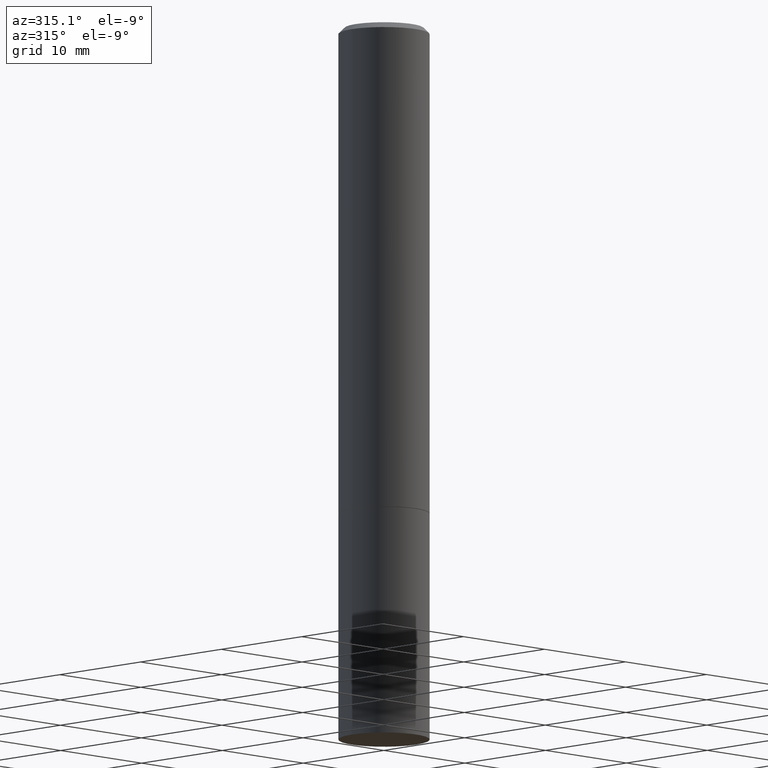
[diagram: clean part render]
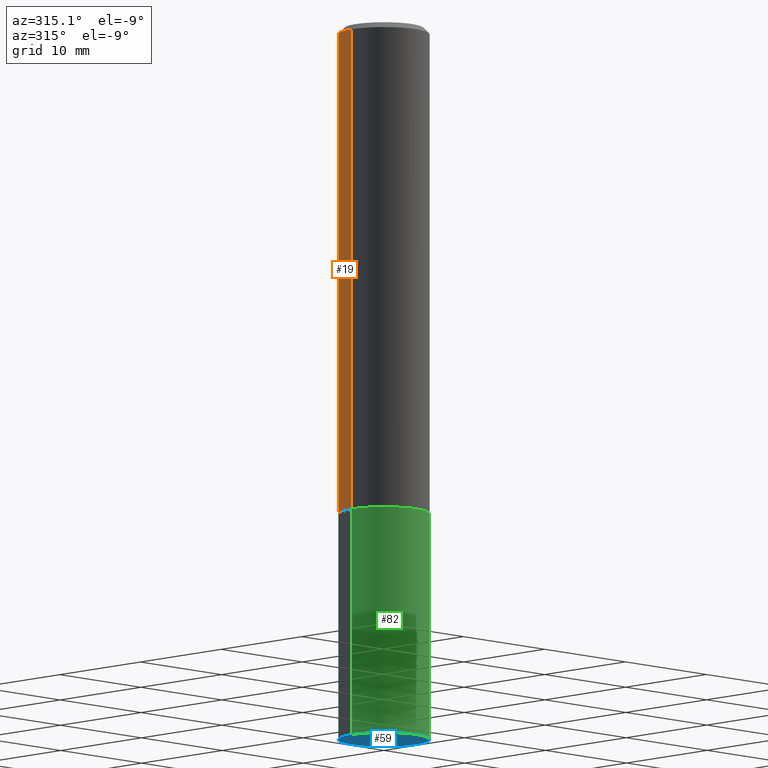
[diagram: same view with three faces highlighted in distinct colors, each labeled with its STEP entity id]
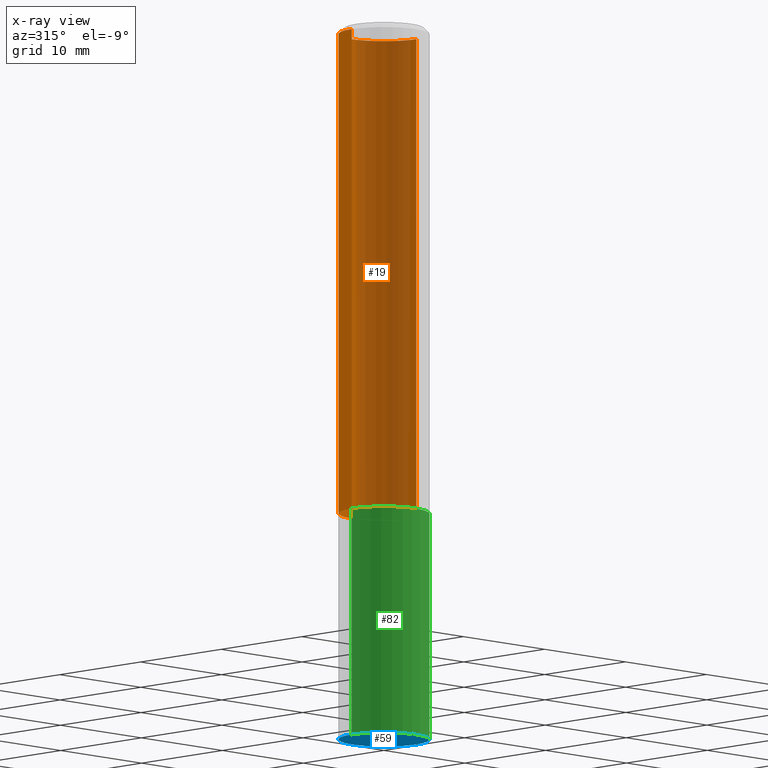
[diagram: x-ray of the same camera — body ghosted, the three highlighted faces saturated]
A machine part, auxiliary view with three faces highlighted in distinct colors.
The next image is the same camera in x-ray (body ghosted, the three faces saturated) — at least one of them is partly hidden behind the body in this view.
Their STEP definitions:

[orange] entity #19 — the highlighted cylindrical surface (partial cylindrical patch) has radius 4.0005 mm, axis along (-0, 0, 1).
#14 = EDGE_CURVE ( 'NONE', #90, #154, #68, .T. ) ;
#19 = ADVANCED_FACE ( 'NONE', ( #216 ), #242, .T. ) ;
#21 = AXIS2_PLACEMENT_3D ( 'NONE', #22, #83, #171 ) ;
#22 = CARTESIAN_POINT ( 'NONE',  ( 4.890937612370275786E-31, -6.982962677686296539E-17, -0.02000000000000001429 ) ) ;
#24 = DIRECTION ( 'NONE',  ( -2.445468806185136877E-29, 3.491481338843145188E-15, 1.000000000000000000 ) ) ;
#31 = DIRECTION ( 'NONE',  ( -2.445468806185136597E-29, 3.491481338843145583E-15, 1.000000000000000000 ) ) ;
#60 = CARTESIAN_POINT ( 'NONE',  ( 0.1574999999999998346, -1.150358061425877894E-15, -0.02000000000000001429 ) ) ;
#61 = ORIENTED_EDGE ( 'NONE', *, *, #170, .F. ) ;
#67 = EDGE_LOOP ( 'NONE', ( #119, #258, #206, #61 ) ) ;
#68 = CIRCLE ( 'NONE', #220, 0.1575000000000000011 ) ;
#83 = DIRECTION ( 'NONE',  ( -2.445468806185136597E-29, 3.491481338843145583E-15, 1.000000000000000000 ) ) ;
#90 = VERTEX_POINT ( 'NONE', #292 ) ;
#119 = ORIENTED_EDGE ( 'NONE', *, *, #14, .T. ) ;
#123 = VERTEX_POINT ( 'NONE', #240 ) ;
#136 = VECTOR ( 'NONE', #24, 39.37007874015748143 ) ;
#143 = CARTESIAN_POINT ( 'NONE',  ( -0.1574999999999998901, 1.119104808822157012E-15, -7.747322767151471379E-30 ) ) ;
#154 = VERTEX_POINT ( 'NONE', #275 ) ;
#159 = DIRECTION ( 'NONE',  ( -2.445468806185136597E-29, 3.491481338843145583E-15, 1.000000000000000000 ) ) ;
#170 = EDGE_CURVE ( 'NONE', #90, #288, #358, .T. ) ;
#171 = DIRECTION ( 'NONE',  ( 1.000000000000000000, -6.982962677686265922E-15, 0.000000000000000000 ) ) ;
#179 = EDGE_CURVE ( 'NONE', #154, #123, #193, .T. ) ;
#187 = CARTESIAN_POINT ( 'NONE',  ( 0.000000000000000000, 0.000000000000000000, 0.000000000000000000 ) ) ;
#193 = LINE ( 'NONE', #143, #364 ) ;
#195 = CARTESIAN_POINT ( 'NONE',  ( 0.1574999999999998901, -1.099816621735586297E-15, 7.679978421878593829E-30 ) ) ;
#206 = ORIENTED_EDGE ( 'NONE', *, *, #339, .F. ) ;
#207 = AXIS2_PLACEMENT_3D ( 'NONE', #187, #159, #349 ) ;
#216 = FACE_OUTER_BOUND ( 'NONE', #67, .T. ) ;
#217 = DIRECTION ( 'NONE',  ( -2.445468806185136877E-29, 3.491481338843145188E-15, 1.000000000000000000 ) ) ;
#220 = AXIS2_PLACEMENT_3D ( 'NONE', #283, #31, #256 ) ;
#240 = CARTESIAN_POINT ( 'NONE',  ( -0.1574999999999998346, 1.029986994958722802E-15, -0.02000000000000001429 ) ) ;
#242 = CYLINDRICAL_SURFACE ( 'NONE', #207, 0.1574999999999998901 ) ;
#256 = DIRECTION ( 'NONE',  ( 1.000000000000000000, -6.982962677686268288E-15, 0.000000000000000000 ) ) ;
#258 = ORIENTED_EDGE ( 'NONE', *, *, #179, .T. ) ;
#275 = CARTESIAN_POINT ( 'NONE',  ( -0.1575000000000000011, -1.869428643160630319E-15, -1.691899999999999959 ) ) ;
#283 = CARTESIAN_POINT ( 'NONE',  ( 4.137488673184632754E-29, -5.907237277188718068E-15, -1.691899999999999959 ) ) ;
#288 = VERTEX_POINT ( 'NONE', #60 ) ;
#292 = CARTESIAN_POINT ( 'NONE',  ( 0.1575000000000000011, -7.007053898924305548E-15, -1.691899999999999959 ) ) ;
#293 = CIRCLE ( 'NONE', #21, 0.1574999999999998346 ) ;
#339 = EDGE_CURVE ( 'NONE', #288, #123, #293, .T. ) ;
#349 = DIRECTION ( 'NONE',  ( 1.000000000000000000, -6.982962677686266711E-15, 4.876176775795935793E-29 ) ) ;
#358 = LINE ( 'NONE', #195, #136 ) ;
#364 = VECTOR ( 'NONE', #217, 39.37007874015748143 ) ;

[blue] entity #59 — the highlighted planar face has unit normal (0, -0, -1).
#17 = CARTESIAN_POINT ( 'NONE',  ( 6.065496279980994755E-29, -8.659921164732655335E-15, -2.480300000000000171 ) ) ;
#18 = CARTESIAN_POINT ( 'NONE',  ( -0.1575000000000000011, -6.166220152807950602E-15, -2.480300000000000171 ) ) ;
#25 = CIRCLE ( 'NONE', #197, 0.1575000000000000011 ) ;
#27 = CIRCLE ( 'NONE', #318, 0.1575000000000000011 ) ;
#47 = DIRECTION ( 'NONE',  ( 2.438088387897960049E-29, -3.491481338843145188E-15, -1.000000000000000000 ) ) ;
#53 = EDGE_CURVE ( 'NONE', #259, #281, #25, .T. ) ;
#59 = ADVANCED_FACE ( 'NONE', ( #294 ), #265, .T. ) ;
#62 = AXIS2_PLACEMENT_3D ( 'NONE', #270, #47, #317 ) ;
#139 = DIRECTION ( 'NONE',  ( 1.000000000000000000, -6.982962677686261977E-15, 0.000000000000000000 ) ) ;
#142 = DIRECTION ( 'NONE',  ( -2.445468806185136597E-29, 3.491481338843145583E-15, 1.000000000000000000 ) ) ;
#157 = EDGE_CURVE ( 'NONE', #281, #259, #27, .T. ) ;
#169 = CARTESIAN_POINT ( 'NONE',  ( 0.1575000000000000011, -9.759737786468242027E-15, -2.480300000000000171 ) ) ;
#180 = ORIENTED_EDGE ( 'NONE', *, *, #53, .F. ) ;
#197 = AXIS2_PLACEMENT_3D ( 'NONE', #17, #347, #237 ) ;
#231 = EDGE_LOOP ( 'NONE', ( #180, #337 ) ) ;
#237 = DIRECTION ( 'NONE',  ( 1.000000000000000000, -6.982962677686261977E-15, 0.000000000000000000 ) ) ;
#259 = VERTEX_POINT ( 'NONE', #169 ) ;
#265 = PLANE ( 'NONE',  #62 ) ;
#270 = CARTESIAN_POINT ( 'NONE',  ( 1.099816621735647434E-15, 0.1574999999999913136, -2.480300000000001059 ) ) ;
#280 = CARTESIAN_POINT ( 'NONE',  ( 6.065496279980994755E-29, -8.659921164732655335E-15, -2.480300000000000171 ) ) ;
#281 = VERTEX_POINT ( 'NONE', #18 ) ;
#294 = FACE_OUTER_BOUND ( 'NONE', #231, .T. ) ;
#317 = DIRECTION ( 'NONE',  ( -1.000000000000000000, 6.982962677686265922E-15, -4.876176775795935793E-29 ) ) ;
#318 = AXIS2_PLACEMENT_3D ( 'NONE', #280, #142, #139 ) ;
#337 = ORIENTED_EDGE ( 'NONE', *, *, #157, .F. ) ;
#347 = DIRECTION ( 'NONE',  ( -2.445468806185136597E-29, 3.491481338843145583E-15, 1.000000000000000000 ) ) ;

[green] entity #82 — the highlighted cylindrical surface (partial cylindrical patch) has radius 4.0005 mm, axis along (-0, 0, 1).
#5 = CARTESIAN_POINT ( 'NONE',  ( 0.1575000000000000011, -1.099816621735586889E-15, 7.679978421878598033E-30 ) ) ;
#18 = CARTESIAN_POINT ( 'NONE',  ( -0.1575000000000000011, -6.166220152807950602E-15, -2.480300000000000171 ) ) ;
#27 = CIRCLE ( 'NONE', #318, 0.1575000000000000011 ) ;
#28 = ORIENTED_EDGE ( 'NONE', *, *, #45, .T. ) ;
#33 = ORIENTED_EDGE ( 'NONE', *, *, #157, .T. ) ;
#38 = CARTESIAN_POINT ( 'NONE',  ( 0.000000000000000000, 0.000000000000000000, 0.000000000000000000 ) ) ;
#45 = EDGE_CURVE ( 'NONE', #259, #361, #107, .T. ) ;
#56 = CARTESIAN_POINT ( 'NONE',  ( 0.1575000000000000011, -7.010545380263150133E-15, -1.692900000000000293 ) ) ;
#57 = DIRECTION ( 'NONE',  ( 1.000000000000000000, -6.982962677686268288E-15, 0.000000000000000000 ) ) ;
#82 = ADVANCED_FACE ( 'NONE', ( #322 ), #290, .T. ) ;
#107 = LINE ( 'NONE', #5, #150 ) ;
#112 = CARTESIAN_POINT ( 'NONE',  ( -0.1575000000000000011, 1.119104808822157801E-15, -7.747322767151475583E-30 ) ) ;
#116 = AXIS2_PLACEMENT_3D ( 'NONE', #38, #137, #156 ) ;
#122 = VERTEX_POINT ( 'NONE', #133 ) ;
#133 = CARTESIAN_POINT ( 'NONE',  ( -0.1575000000000000011, -6.166220152807950602E-15, -1.692900000000000293 ) ) ;
#137 = DIRECTION ( 'NONE',  ( -2.445468806185136597E-29, 3.491481338843145583E-15, 1.000000000000000000 ) ) ;
#139 = DIRECTION ( 'NONE',  ( 1.000000000000000000, -6.982962677686261977E-15, 0.000000000000000000 ) ) ;
#142 = DIRECTION ( 'NONE',  ( -2.445468806185136597E-29, 3.491481338843145583E-15, 1.000000000000000000 ) ) ;
#150 = VECTOR ( 'NONE', #262, 39.37007874015748143 ) ;
#156 = DIRECTION ( 'NONE',  ( 1.000000000000000000, -6.982962677686265922E-15, 4.876176775795935232E-29 ) ) ;
#157 = EDGE_CURVE ( 'NONE', #281, #259, #27, .T. ) ;
#169 = CARTESIAN_POINT ( 'NONE',  ( 0.1575000000000000011, -9.759737786468242027E-15, -2.480300000000000171 ) ) ;
#194 = EDGE_CURVE ( 'NONE', #122, #361, #331, .T. ) ;
#199 = CARTESIAN_POINT ( 'NONE',  ( 4.139934141990818918E-29, -5.910728758527562653E-15, -1.692900000000000293 ) ) ;
#219 = LINE ( 'NONE', #112, #251 ) ;
#251 = VECTOR ( 'NONE', #326, 39.37007874015748143 ) ;
#259 = VERTEX_POINT ( 'NONE', #169 ) ;
#262 = DIRECTION ( 'NONE',  ( -2.445468806185136877E-29, 3.491481338843145188E-15, 1.000000000000000000 ) ) ;
#280 = CARTESIAN_POINT ( 'NONE',  ( 6.065496279980994755E-29, -8.659921164732655335E-15, -2.480300000000000171 ) ) ;
#281 = VERTEX_POINT ( 'NONE', #18 ) ;
#290 = CYLINDRICAL_SURFACE ( 'NONE', #116, 0.1575000000000000011 ) ;
#305 = DIRECTION ( 'NONE',  ( -2.445468806185136597E-29, 3.491481338843145583E-15, 1.000000000000000000 ) ) ;
#309 = ORIENTED_EDGE ( 'NONE', *, *, #336, .F. ) ;
#318 = AXIS2_PLACEMENT_3D ( 'NONE', #280, #142, #139 ) ;
#322 = FACE_OUTER_BOUND ( 'NONE', #335, .T. ) ;
#326 = DIRECTION ( 'NONE',  ( -2.445468806185136877E-29, 3.491481338843145188E-15, 1.000000000000000000 ) ) ;
#331 = CIRCLE ( 'NONE', #334, 0.1575000000000000011 ) ;
#334 = AXIS2_PLACEMENT_3D ( 'NONE', #199, #305, #57 ) ;
#335 = EDGE_LOOP ( 'NONE', ( #309, #33, #28, #338 ) ) ;
#336 = EDGE_CURVE ( 'NONE', #281, #122, #219, .T. ) ;
#338 = ORIENTED_EDGE ( 'NONE', *, *, #194, .F. ) ;
#361 = VERTEX_POINT ( 'NONE', #56 ) ;